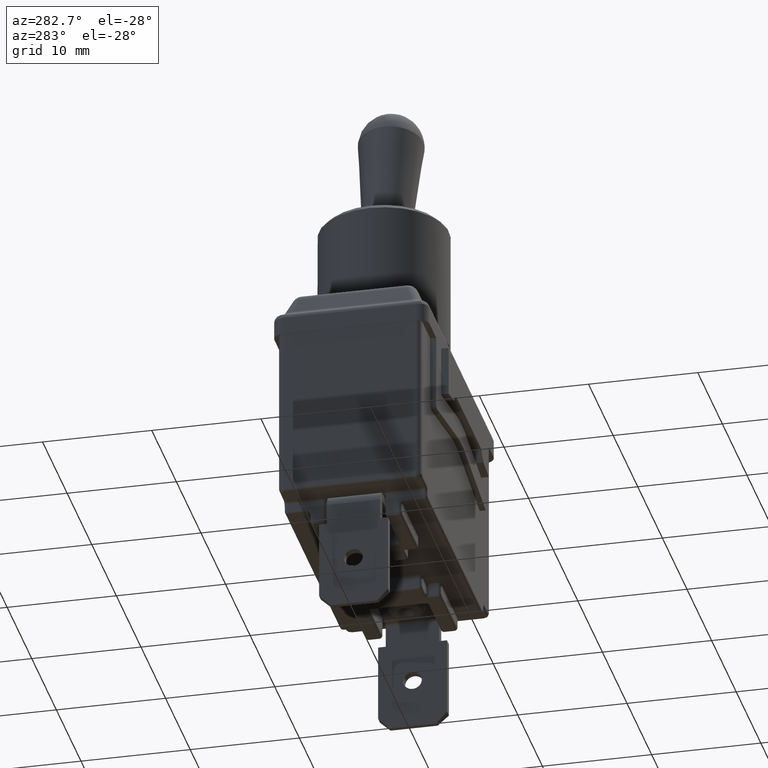
[diagram: clean part render]
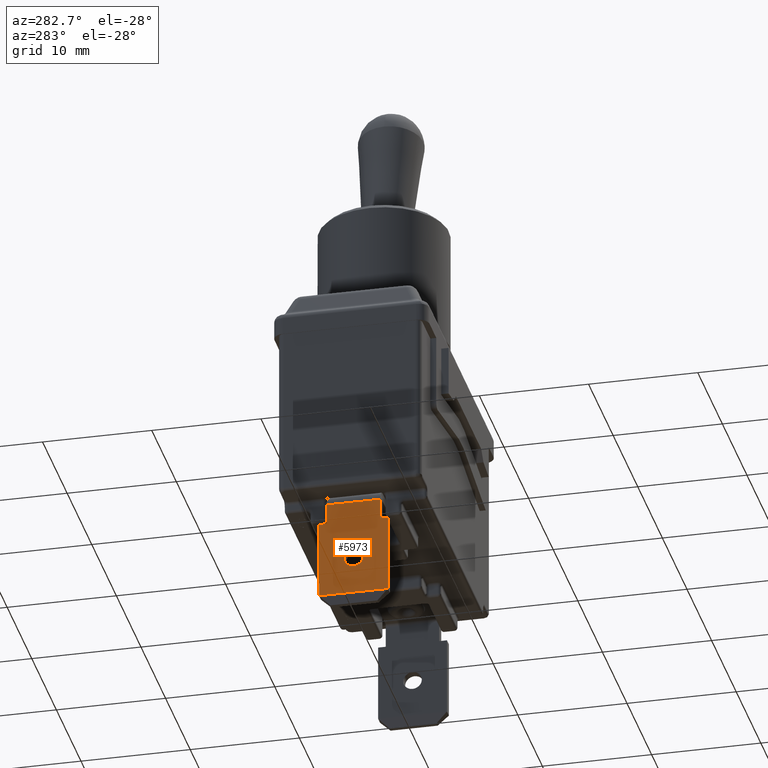
[diagram: same view with one face highlighted and labeled with its STEP entity id]
A machine part, auxiliary view. The second image highlights one B-rep face of the part: STEP entity #5973.
In plain terms, the highlighted planar face has unit normal (-1, 0, 0).
Its self-contained STEP definition (entity closure, byte-faithful):
#111=FACE_BOUND('',#1953,.T.);
#257=PLANE('',#6424);
#425=LINE('',#9022,#934);
#431=LINE('',#9045,#940);
#449=LINE('',#9079,#958);
#450=LINE('',#9090,#959);
#454=LINE('',#9097,#963);
#456=LINE('',#9101,#965);
#457=LINE('',#9110,#966);
#459=LINE('',#9124,#968);
#934=VECTOR('',#7162,1.);
#940=VECTOR('',#7184,1.);
#958=VECTOR('',#7214,1.);
#959=VECTOR('',#7219,1.);
#963=VECTOR('',#7227,1.);
#965=VECTOR('',#7231,1.);
#966=VECTOR('',#7234,1.);
#968=VECTOR('',#7238,1.);
#1562=FACE_OUTER_BOUND('',#1952,.T.);
#1952=EDGE_LOOP('',(#4325,#4326,#4327,#4328,#4329,#4330,#4331,#4332));
#1953=EDGE_LOOP('',(#4333));
#2323=CIRCLE('',#6391,0.085);
#2660=VERTEX_POINT('',#9019);
#2661=VERTEX_POINT('',#9021);
#2666=VERTEX_POINT('',#9035);
#2669=VERTEX_POINT('',#9042);
#2670=VERTEX_POINT('',#9044);
#2680=VERTEX_POINT('',#9077);
#2683=VERTEX_POINT('',#9087);
#2684=VERTEX_POINT('',#9089);
#2686=VERTEX_POINT('',#9099);
#3239=EDGE_CURVE('',#2661,#2660,#425,.T.);
#3246=EDGE_CURVE('',#2666,#2666,#2323,.T.);
#3250=EDGE_CURVE('',#2669,#2670,#431,.T.);
#3268=EDGE_CURVE('',#2669,#2680,#449,.T.);
#3271=EDGE_CURVE('',#2684,#2683,#450,.T.);
#3276=EDGE_CURVE('',#2680,#2684,#454,.T.);
#3278=EDGE_CURVE('',#2660,#2686,#456,.T.);
#3280=EDGE_CURVE('',#2661,#2683,#457,.T.);
#3283=EDGE_CURVE('',#2686,#2670,#459,.T.);
#4325=ORIENTED_EDGE('',*,*,#3250,.F.);
#4326=ORIENTED_EDGE('',*,*,#3268,.T.);
#4327=ORIENTED_EDGE('',*,*,#3276,.T.);
#4328=ORIENTED_EDGE('',*,*,#3271,.T.);
#4329=ORIENTED_EDGE('',*,*,#3280,.F.);
#4330=ORIENTED_EDGE('',*,*,#3239,.T.);
#4331=ORIENTED_EDGE('',*,*,#3278,.T.);
#4332=ORIENTED_EDGE('',*,*,#3283,.T.);
#4333=ORIENTED_EDGE('',*,*,#3246,.T.);
#5973=ADVANCED_FACE('',(#1562,#111),#257,.T.);
#6391=AXIS2_PLACEMENT_3D('',#9036,#7176,#7177);
#6424=AXIS2_PLACEMENT_3D('',#9179,#7275,#7276);
#7162=DIRECTION('',(-9.55261252416069E-32,-2.85573089352787E-32,-1.));
#7176=DIRECTION('center_axis',(1.,-4.9960036108132E-16,-9.40202997669718E-32));
#7177=DIRECTION('ref_axis',(9.55261252416069E-32,2.85573089352787E-32,1.));
#7184=DIRECTION('',(4.9960036108132E-16,1.,-2.85573089352787E-32));
#7214=DIRECTION('',(9.55261252416069E-32,2.85573089352787E-32,1.));
#7219=DIRECTION('',(2.57304240570135E-31,3.23815048849004E-16,1.));
#7227=DIRECTION('',(4.9960036108132E-16,1.,-2.85573089352787E-32));
#7231=DIRECTION('',(4.9960036108132E-16,1.,-2.85573089352787E-32));
#7234=DIRECTION('',(-4.9960036108132E-16,-1.,2.85573089352787E-32));
#7238=DIRECTION('',(-9.55261252416069E-32,-2.85573089352787E-32,-1.));
#7275=DIRECTION('center_axis',(-1.,4.9960036108132E-16,9.40202997669718E-32));
#7276=DIRECTION('ref_axis',(-4.9960036108132E-16,-1.,2.85573089352787E-32));
#9019=CARTESIAN_POINT('',(-1.24,0.245,-1.88));
#9021=CARTESIAN_POINT('',(-1.24,0.245,-1.69));
#9022=CARTESIAN_POINT('',(-1.24,0.245,-2.29));
#9035=CARTESIAN_POINT('',(-1.24,1.80273620560402E-16,-2.335));
#9036=CARTESIAN_POINT('Origin',(-1.24,1.69864122767649E-16,-2.25));
#9042=CARTESIAN_POINT('',(-1.24,-0.315,-2.6));
#9044=CARTESIAN_POINT('',(-1.24,0.315,-2.6));
#9045=CARTESIAN_POINT('',(-1.24,1.69864122767649E-16,-2.6));
#9077=CARTESIAN_POINT('',(-1.24,-0.315,-1.88));
#9079=CARTESIAN_POINT('',(-1.24,-0.315,-1.58));
#9087=CARTESIAN_POINT('',(-1.24,-0.245,-1.69));
#9089=CARTESIAN_POINT('',(-1.24,-0.245,-1.88));
#9090=CARTESIAN_POINT('',(-1.24,-0.245,-2.14));
#9097=CARTESIAN_POINT('',(-1.24,-0.1225,-1.88));
#9099=CARTESIAN_POINT('',(-1.24,0.315,-1.88));
#9101=CARTESIAN_POINT('',(-1.24,0.1575,-1.88));
#9110=CARTESIAN_POINT('',(-1.24,1.69864122767649E-16,-1.69));
#9124=CARTESIAN_POINT('',(-1.24,0.315,-1.58));
#9179=CARTESIAN_POINT('Origin',(-1.24,1.69864122767649E-16,-2.7));